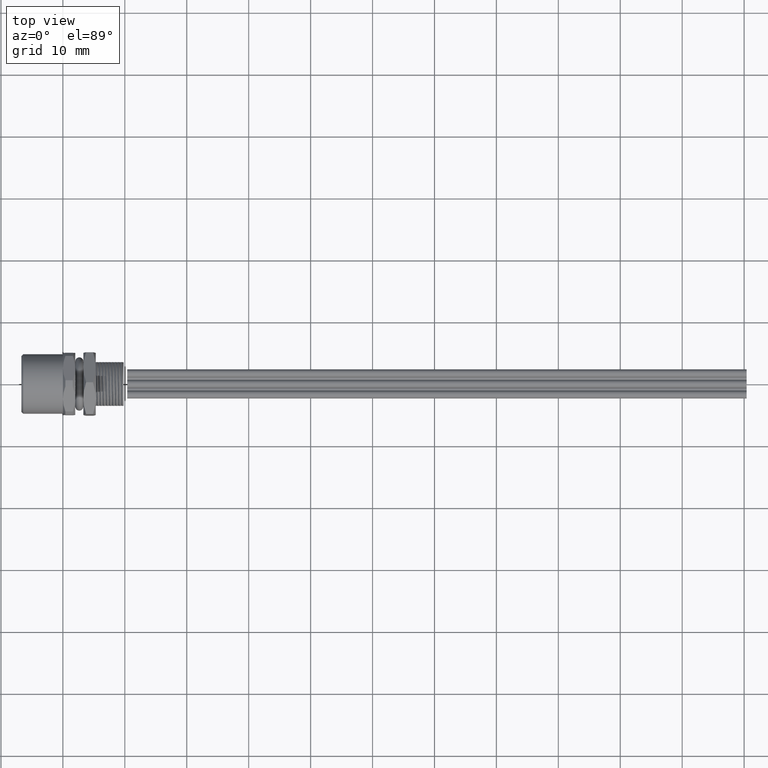
[diagram: clean part render]
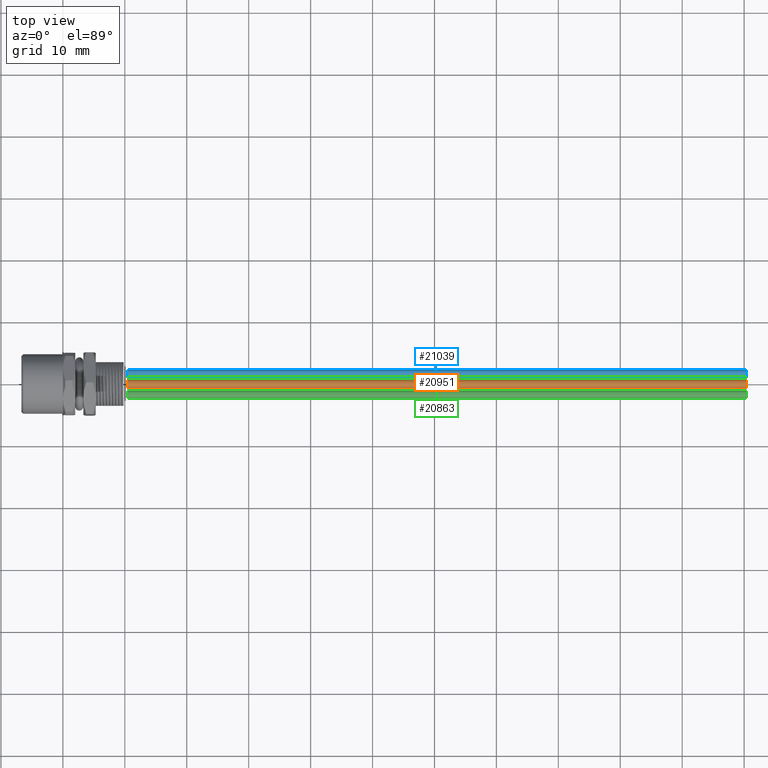
[diagram: same view with three faces highlighted in distinct colors, each labeled with its STEP entity id]
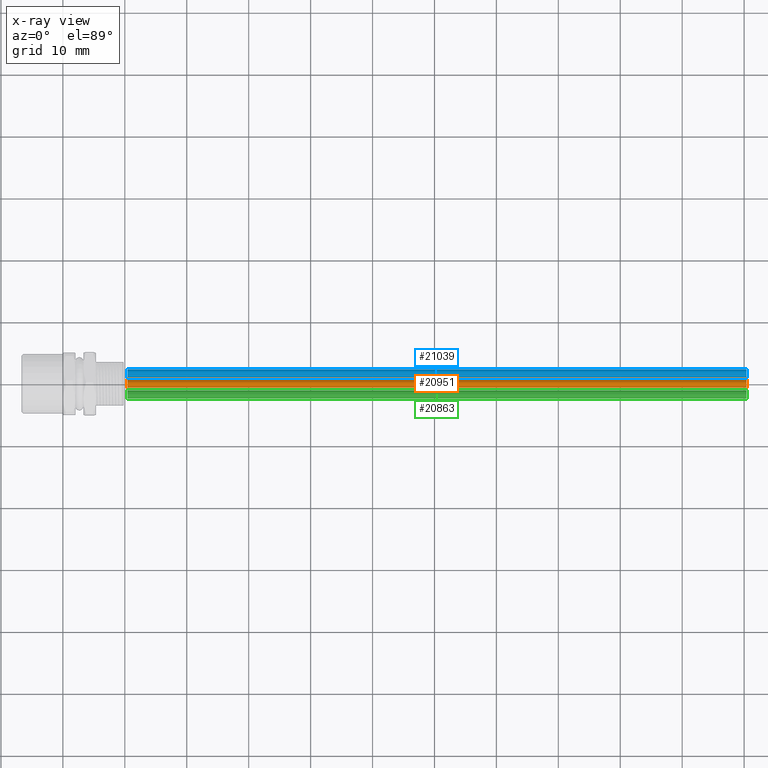
[diagram: x-ray of the same camera — body ghosted, the three highlighted faces saturated]
A machine part, top view with three faces highlighted in distinct colors.
The next image is the same camera in x-ray (body ghosted, the three faces saturated) — at least one of them is partly hidden behind the body in this view.
Their STEP definitions:

[orange] entity #20951 — the highlighted cylindrical surface (edge-blend (fillet) strip) has radius 0.65 mm, axis along (-1, 0, 0).
#20889=CARTESIAN_POINT('',(4.346456692913E0,0.E0,5.314960629921E-2));
#20890=DIRECTION('',(-1.E0,0.E0,0.E0));
#20891=DIRECTION('',(0.E0,-1.E0,0.E0));
#20892=AXIS2_PLACEMENT_3D('',#20889,#20890,#20891);
#20899=DIRECTION('',(-1.E0,0.E0,0.E0));
#20900=VECTOR('',#20899,3.937007874016E0);
#20901=CARTESIAN_POINT('',(4.346456692913E0,-2.559055118110E-2,
5.314960629921E-2));
#20902=LINE('',#20901,#20900);
#20903=DIRECTION('',(-1.E0,0.E0,0.E0));
#20904=VECTOR('',#20903,3.937007874016E0);
#20905=CARTESIAN_POINT('',(4.346456692913E0,2.559055118110E-2,
5.314960629921E-2));
#20906=LINE('',#20905,#20904);
#20907=CARTESIAN_POINT('',(4.094488188976E-1,0.E0,5.314960629921E-2));
#20908=DIRECTION('',(-1.E0,0.E0,0.E0));
#20909=DIRECTION('',(0.E0,-1.E0,0.E0));
#20910=AXIS2_PLACEMENT_3D('',#20907,#20908,#20909);
#20917=CARTESIAN_POINT('',(4.346456692913E0,-2.559055118110E-2,
5.314960629921E-2));
#20918=CARTESIAN_POINT('',(4.346456692913E0,2.559055118110E-2,
5.314960629921E-2));
#20919=VERTEX_POINT('',#20917);
#20920=VERTEX_POINT('',#20918);
#20921=CARTESIAN_POINT('',(4.094488188976E-1,-2.559055118110E-2,
5.314960629921E-2));
#20922=CARTESIAN_POINT('',(4.094488188976E-1,2.559055118110E-2,
5.314960629921E-2));
#20923=VERTEX_POINT('',#20921);
#20924=VERTEX_POINT('',#20922);
#20937=CARTESIAN_POINT('',(4.346456692913E0,0.E0,5.314960629921E-2));
#20938=DIRECTION('',(-1.E0,0.E0,0.E0));
#20939=DIRECTION('',(0.E0,-1.E0,0.E0));
#20940=AXIS2_PLACEMENT_3D('',#20937,#20938,#20939);
#20941=CYLINDRICAL_SURFACE('',#20940,2.559055118110E-2);
#20942=ORIENTED_EDGE('',*,*,#20930,.F.);
#20944=ORIENTED_EDGE('',*,*,#20943,.T.);
#20946=ORIENTED_EDGE('',*,*,#20945,.T.);
#20948=ORIENTED_EDGE('',*,*,#20947,.F.);
#20949=EDGE_LOOP('',(#20942,#20944,#20946,#20948));
#20950=FACE_OUTER_BOUND('',#20949,.F.);
#20951=ADVANCED_FACE('',(#20950),#20941,.T.);
#20893=CIRCLE('',#20892,2.559055118110E-2);
#20911=CIRCLE('',#20910,2.559055118110E-2);
#20930=EDGE_CURVE('',#20919,#20920,#20893,.T.);
#20943=EDGE_CURVE('',#20919,#20923,#20902,.T.);
#20945=EDGE_CURVE('',#20923,#20924,#20911,.T.);
#20947=EDGE_CURVE('',#20920,#20924,#20906,.T.);

[blue] entity #21039 — the highlighted cylindrical surface (edge-blend (fillet) strip) has radius 0.65 mm, axis along (-1, 0, 0).
#20977=CARTESIAN_POINT('',(4.346456692913E0,6.692913385827E-2,
1.377952755906E-2));
#20978=DIRECTION('',(-1.E0,0.E0,0.E0));
#20979=DIRECTION('',(0.E0,-1.E0,0.E0));
#20980=AXIS2_PLACEMENT_3D('',#20977,#20978,#20979);
#20987=DIRECTION('',(-1.E0,0.E0,0.E0));
#20988=VECTOR('',#20987,3.937007874016E0);
#20989=CARTESIAN_POINT('',(4.346456692913E0,4.133858267717E-2,
1.377952755906E-2));
#20990=LINE('',#20989,#20988);
#20991=DIRECTION('',(-1.E0,0.E0,0.E0));
#20992=VECTOR('',#20991,3.937007874016E0);
#20993=CARTESIAN_POINT('',(4.346456692913E0,9.251968503937E-2,
1.377952755906E-2));
#20994=LINE('',#20993,#20992);
#20995=CARTESIAN_POINT('',(4.094488188976E-1,6.692913385827E-2,
1.377952755906E-2));
#20996=DIRECTION('',(-1.E0,0.E0,0.E0));
#20997=DIRECTION('',(0.E0,-1.E0,0.E0));
#20998=AXIS2_PLACEMENT_3D('',#20995,#20996,#20997);
#21005=CARTESIAN_POINT('',(4.346456692913E0,4.133858267717E-2,
1.377952755906E-2));
#21006=CARTESIAN_POINT('',(4.346456692913E0,9.251968503937E-2,
1.377952755906E-2));
#21007=VERTEX_POINT('',#21005);
#21008=VERTEX_POINT('',#21006);
#21009=CARTESIAN_POINT('',(4.094488188976E-1,4.133858267717E-2,
1.377952755906E-2));
#21010=CARTESIAN_POINT('',(4.094488188976E-1,9.251968503937E-2,
1.377952755906E-2));
#21011=VERTEX_POINT('',#21009);
#21012=VERTEX_POINT('',#21010);
#21025=CARTESIAN_POINT('',(4.346456692913E0,6.692913385827E-2,
1.377952755906E-2));
#21026=DIRECTION('',(-1.E0,0.E0,0.E0));
#21027=DIRECTION('',(0.E0,-1.E0,0.E0));
#21028=AXIS2_PLACEMENT_3D('',#21025,#21026,#21027);
#21029=CYLINDRICAL_SURFACE('',#21028,2.559055118110E-2);
#21030=ORIENTED_EDGE('',*,*,#21018,.F.);
#21032=ORIENTED_EDGE('',*,*,#21031,.T.);
#21034=ORIENTED_EDGE('',*,*,#21033,.T.);
#21036=ORIENTED_EDGE('',*,*,#21035,.F.);
#21037=EDGE_LOOP('',(#21030,#21032,#21034,#21036));
#21038=FACE_OUTER_BOUND('',#21037,.F.);
#21039=ADVANCED_FACE('',(#21038),#21029,.T.);
#20981=CIRCLE('',#20980,2.559055118110E-2);
#20999=CIRCLE('',#20998,2.559055118110E-2);
#21018=EDGE_CURVE('',#21007,#21008,#20981,.T.);
#21031=EDGE_CURVE('',#21007,#21011,#20990,.T.);
#21033=EDGE_CURVE('',#21011,#21012,#20999,.T.);
#21035=EDGE_CURVE('',#21008,#21012,#20994,.T.);

[green] entity #20863 — the highlighted cylindrical surface (edge-blend (fillet) strip) has radius 0.65 mm, axis along (-1, 0, 0).
#20801=CARTESIAN_POINT('',(4.346456692913E0,-6.692913385827E-2,
1.377952755906E-2));
#20802=DIRECTION('',(-1.E0,0.E0,0.E0));
#20803=DIRECTION('',(0.E0,-1.E0,0.E0));
#20804=AXIS2_PLACEMENT_3D('',#20801,#20802,#20803);
#20811=DIRECTION('',(-1.E0,0.E0,0.E0));
#20812=VECTOR('',#20811,3.937007874016E0);
#20813=CARTESIAN_POINT('',(4.346456692913E0,-9.251968503937E-2,
1.377952755906E-2));
#20814=LINE('',#20813,#20812);
#20815=DIRECTION('',(-1.E0,0.E0,0.E0));
#20816=VECTOR('',#20815,3.937007874016E0);
#20817=CARTESIAN_POINT('',(4.346456692913E0,-4.133858267717E-2,
1.377952755906E-2));
#20818=LINE('',#20817,#20816);
#20819=CARTESIAN_POINT('',(4.094488188976E-1,-6.692913385827E-2,
1.377952755906E-2));
#20820=DIRECTION('',(-1.E0,0.E0,0.E0));
#20821=DIRECTION('',(0.E0,-1.E0,0.E0));
#20822=AXIS2_PLACEMENT_3D('',#20819,#20820,#20821);
#20829=CARTESIAN_POINT('',(4.346456692913E0,-9.251968503937E-2,
1.377952755906E-2));
#20830=CARTESIAN_POINT('',(4.346456692913E0,-4.133858267717E-2,
1.377952755906E-2));
#20831=VERTEX_POINT('',#20829);
#20832=VERTEX_POINT('',#20830);
#20833=CARTESIAN_POINT('',(4.094488188976E-1,-9.251968503937E-2,
1.377952755906E-2));
#20834=CARTESIAN_POINT('',(4.094488188976E-1,-4.133858267717E-2,
1.377952755906E-2));
#20835=VERTEX_POINT('',#20833);
#20836=VERTEX_POINT('',#20834);
#20849=CARTESIAN_POINT('',(4.346456692913E0,-6.692913385827E-2,
1.377952755906E-2));
#20850=DIRECTION('',(-1.E0,0.E0,0.E0));
#20851=DIRECTION('',(0.E0,-1.E0,0.E0));
#20852=AXIS2_PLACEMENT_3D('',#20849,#20850,#20851);
#20853=CYLINDRICAL_SURFACE('',#20852,2.559055118110E-2);
#20854=ORIENTED_EDGE('',*,*,#20842,.F.);
#20856=ORIENTED_EDGE('',*,*,#20855,.T.);
#20858=ORIENTED_EDGE('',*,*,#20857,.T.);
#20860=ORIENTED_EDGE('',*,*,#20859,.F.);
#20861=EDGE_LOOP('',(#20854,#20856,#20858,#20860));
#20862=FACE_OUTER_BOUND('',#20861,.F.);
#20863=ADVANCED_FACE('',(#20862),#20853,.T.);
#20805=CIRCLE('',#20804,2.559055118110E-2);
#20823=CIRCLE('',#20822,2.559055118110E-2);
#20842=EDGE_CURVE('',#20831,#20832,#20805,.T.);
#20855=EDGE_CURVE('',#20831,#20835,#20814,.T.);
#20857=EDGE_CURVE('',#20835,#20836,#20823,.T.);
#20859=EDGE_CURVE('',#20832,#20836,#20818,.T.);